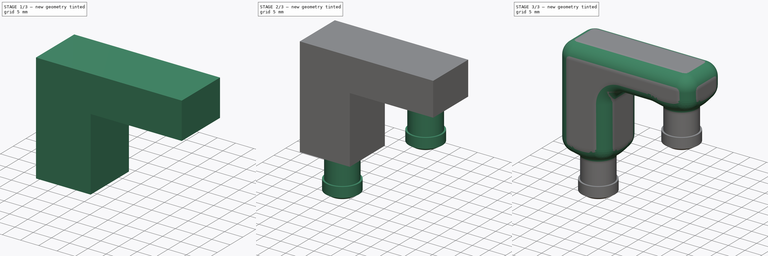
[diagram: build sequence overview — one tinted view per stage of 3, left to right]
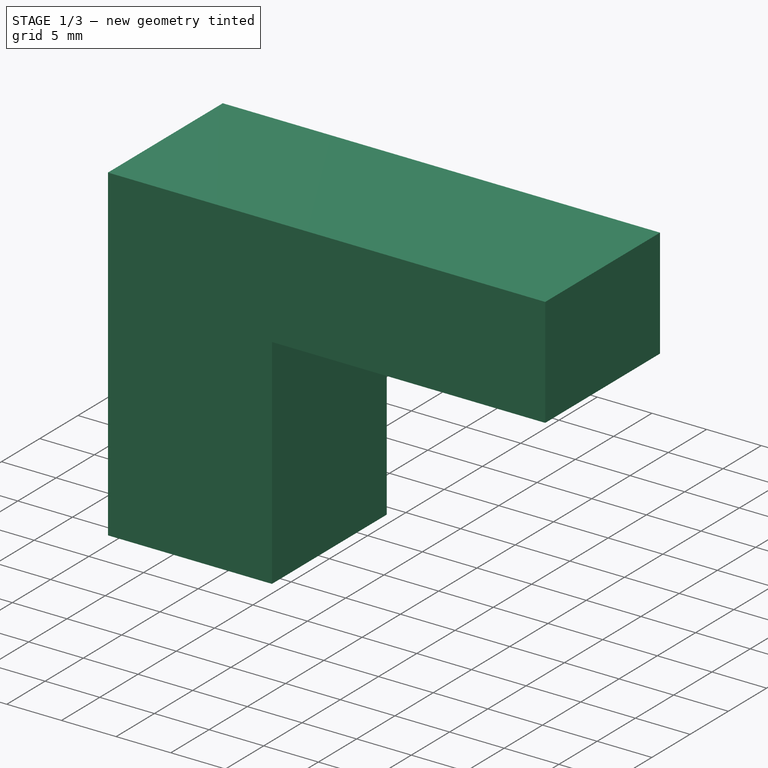
[diagram: stage 1 of 3 — iso view after this stage's code; geometry added in this stage tinted green]
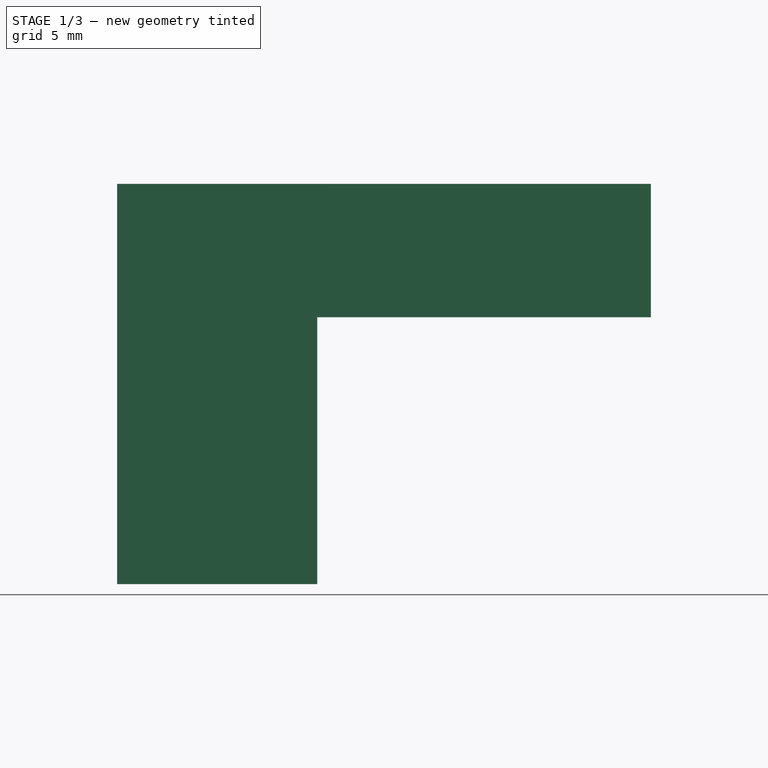
[diagram: stage 1 of 3 — front view after this stage's code; geometry added in this stage tinted green]
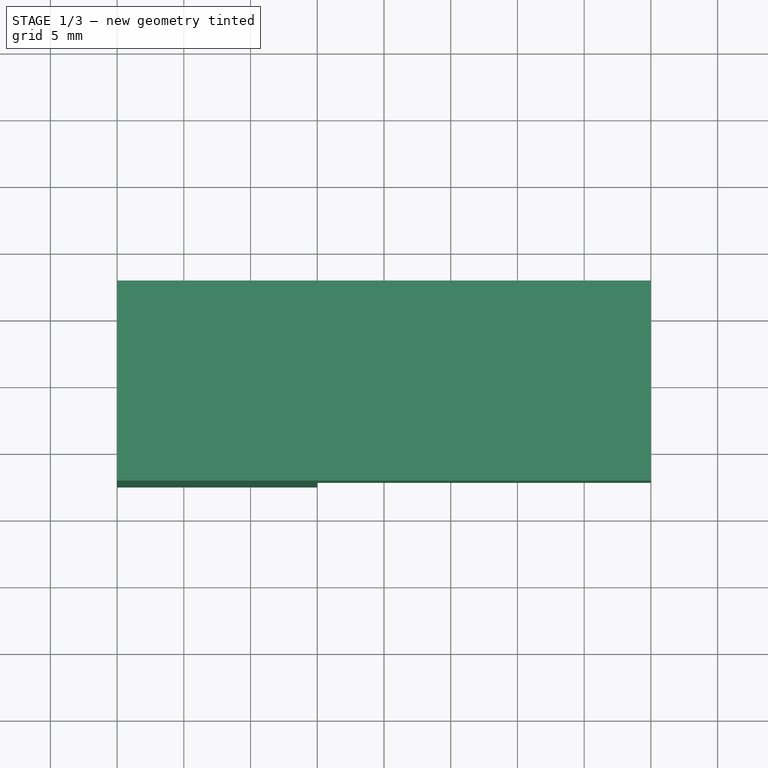
[diagram: stage 1 of 3 — top view after this stage's code; geometry added in this stage tinted green]
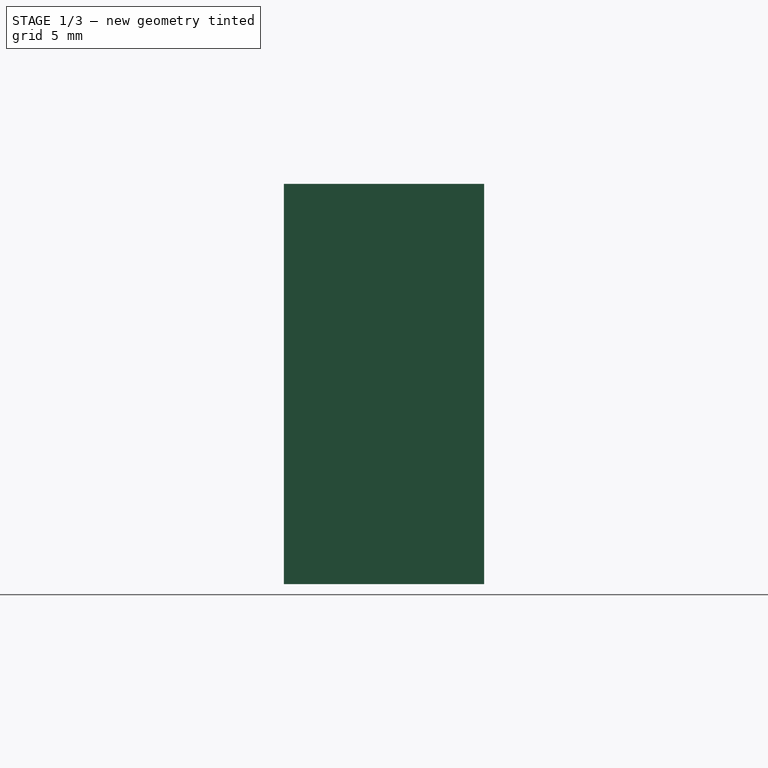
[diagram: stage 1 of 3 — right view after this stage's code; geometry added in this stage tinted green]
FCSTD DOCUMENT  (FreeCAD 2023.521R14555 (Git shallow))
Label: U_bend
License: All rights reserved
LicenseURL: https://en.wikipedia.org/wiki/All_rights_reserved
objects: Sketcher::SketchObject×5, PartDesign::Line×2, PartDesign::Revolution×2, PartDesign::Fillet×2, PartDesign::Pad×1, PartDesign::AdditivePipe×1, PartDesign::Body×1
note: 31 computed .brp shape members not serialized (recipe doc carries the construction recipe); baked Part::Feature solids carry a one-line shape summary decoded from their .brp

FEATURE [Sketcher::SketchObject] Sketch
  ArcFitTolerance = 1e-06
  AttachmentSupport = -> [XZ_Plane]
  ExternalBSplineMaxDegree = 5
  ExternalBSplineTolerance = 0.0001
  FixShape = 1
  FullyConstrained = true
  InternalTolerance = 1e-06
  InvalidShape = false
  MakeInternals = false
  MapMode = 5
  Placement = pos=(0,0,0) rot=(1,0,0;1.5708rad)
  Support = -> [XZ_Plane]
  TreeRank = 11
  ValidateShape = false
  sketch-geometry (6):
    g0: LineSegment StartX=0 StartY=0 StartZ=0 EndX=15 EndY=0 EndZ=0
    g1: LineSegment StartX=15 StartY=0 StartZ=0 EndX=15 EndY=20 EndZ=0
    g2: LineSegment StartX=15 StartY=20 StartZ=0 EndX=40 EndY=20 EndZ=0
    g3: LineSegment StartX=40 StartY=20 StartZ=0 EndX=40 EndY=30 EndZ=0
    g4: LineSegment StartX=40 StartY=30 StartZ=0 EndX=0 EndY=30 EndZ=0
    g5: LineSegment StartX=0 StartY=30 StartZ=0 EndX=0 EndY=0 EndZ=0
  constraints (17):
    c: Coincident(g-1,g0)
    c: Horizontal(g0)
    c: Coincident(g0,g1)
    c: Coincident(g1,g2)
    c: Coincident(g2,g3)
    c: Coincident(g3,g4)
    c: Coincident(g4,g5)
    c: Coincident(g5,g0)
    c: Vertical(g5)
    c: Vertical(g1)
    c: Vertical(g3)
    c: Horizontal(g2)
    c: Horizontal(g4)
    c: DistanceY(g3,g3) = 10
    c: DistanceX(g4,g4) = 40
    c: DistanceY(g1,g1) = 20
    c: DistanceX(g0,g0) = 15
FEATURE [PartDesign::Pad] Pad
  AddSubType = 0
  AlongSketchNormal = false
  AutoTaperInnerAngle = true
  CheckUpToFaceLimits = true
  ClaimChildren = false
  Direction = (0,-1,-2e-16)
  Fit = 0
  FitJoin = 0
  FixShape = 1
  InnerFit = 0
  InnerFitJoin = 0
  InvalidShape = false
  Length = 15
  Length2 = 10
  Linearize = true
  Midplane = true
  NewSolid = false
  Profile = -> Sketch
  ReferenceAxis = -> Sketch [N_Axis]
  Refine = true
  Suppress = false
  TaperInnerAngle = 0
  TaperInnerAngleRev = 0
  TreeRank = 12
  Type = 0
  ValidateShape = true
  _ProfileBasedVersion = 1
FEATURE [Sketcher::SketchObject] Sketch001
  ArcFitTolerance = 1e-06
  AttachmentSupport = -> [XZ_Plane]
  ExternalBSplineMaxDegree = 5
  ExternalBSplineTolerance = 0.0001
  ExternalGeometry = -> [Pad]
  FixShape = 1
  FullyConstrained = true
  InternalTolerance = 1e-06
  InvalidShape = false
  MakeInternals = false
  MapMode = 5
  Placement = pos=(0,0,0) rot=(1,0,0;1.5708rad)
  Support = -> [XZ_Plane]
  TreeRank = 13
  ValidateShape = false
  sketch-geometry (7):
    g0: LineSegment StartX=7.5 StartY=0 StartZ=0 EndX=7.5 EndY=21 EndZ=0
    g1: LineSegment StartX=11.5 StartY=25 StartZ=0 EndX=28.5 EndY=25 EndZ=0
    g2: LineSegment StartX=32.5 StartY=21 StartZ=0 EndX=32.5 EndY=20 EndZ=0
    g3: ArcOfCircle CenterX=11.5 CenterY=21 CenterZ=0 NormalX=0 NormalY=0 NormalZ=1 AngleXU=0 Radius=4 StartAngle=1.5708 EndAngle=3.14159
    g4: ArcOfCircle CenterX=28.5 CenterY=21 CenterZ=0 NormalX=0 NormalY=0 NormalZ=1 AngleXU=0 Radius=4 StartAngle=0 EndAngle=1.5708
    g5: LineSegment [constr] StartX=7.5 StartY=0 StartZ=0 EndX=15 EndY=0 EndZ=0
    g6: LineSegment [constr] StartX=32.5 StartY=20 StartZ=0 EndX=40 EndY=20 EndZ=0
  constraints (17):
    c: Vertical(g0)
    c: Horizontal(g1)
    c: Symmetric(g-4,g-4,g0)
    c: Vertical(g2)
    c: DistanceY(g2,g1) = 5
    c: Equal(g3,g4)
    c: Tangent(g3,g1) = 1.5708
    c: Tangent(g3,g0) = 1.5708
    c: Tangent(g4,g1) = 1.5708
    c: Tangent(g4,g2) = 1.5708
    c: Radius(g4) = 4
    c: Horizontal(g2,g-3)
    c: Coincident(g5,g0)
    c: Coincident(g5,g-4)
    c: Coincident(g6,g2)
    c: Coincident(g6,g-3)
    c: Equal(g6,g5)
FEATURE [Sketcher::SketchObject] Sketch002
  ArcFitTolerance = 1e-06
  AttachmentSupport = -> [Pad]
  ExternalBSplineMaxDegree = 5
  ExternalBSplineTolerance = 0.0001
  ExternalGeometry = -> [Sketch001]
  FixShape = 1
  FullyConstrained = true
  InternalTolerance = 1e-06
  InvalidShape = false
  MakeInternals = false
  MapMode = 5
  Placement = pos=(0,0,0) rot=(1,0,0;3.14159rad)
  Support = -> [Pad]
  TreeRank = 14
  ValidateShape = false
  sketch-geometry (1):
    g0: Circle CenterX=7.5 CenterY=0 CenterZ=0 NormalX=0 NormalY=0 NormalZ=1 AngleXU=0 Radius=3
  constraints (2):
    c: Coincident(g0,g-3)
    c: Diameter(g0) = 6
FEATURE [PartDesign::AdditivePipe] Pipe
  AddSubType = 1
  AuxilleryCurvelinear = true
  AuxillerySpineTangent = false
  BaseFeature = -> Pad
  Binormal = (0,0,0)
  ClaimChildren = false
  Fit = 0
  FitJoin = 0
  FixShape = 1
  InnerFit = 0
  InnerFitJoin = 0
  InvalidShape = false
  Linearize = true
  Mode = 0
  MoveProfile = false
  NewSolid = false
  Profile = -> Sketch002
  Refine = true
  RotateProfile = false
  Spine = -> Sketch001
  SpineTangent = false
  Suppress = false
  Transformation = 0
  Transition = 1
  TreeRank = 15
  ValidateShape = true
  _ProfileBasedVersion = 2
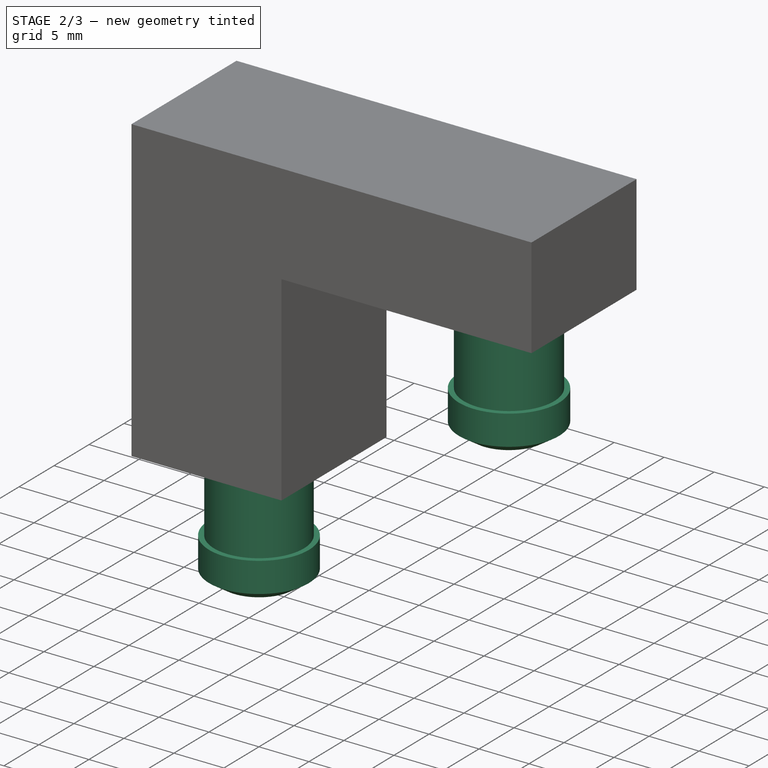
[diagram: stage 2 of 3 — iso view after this stage's code; geometry added in this stage tinted green]
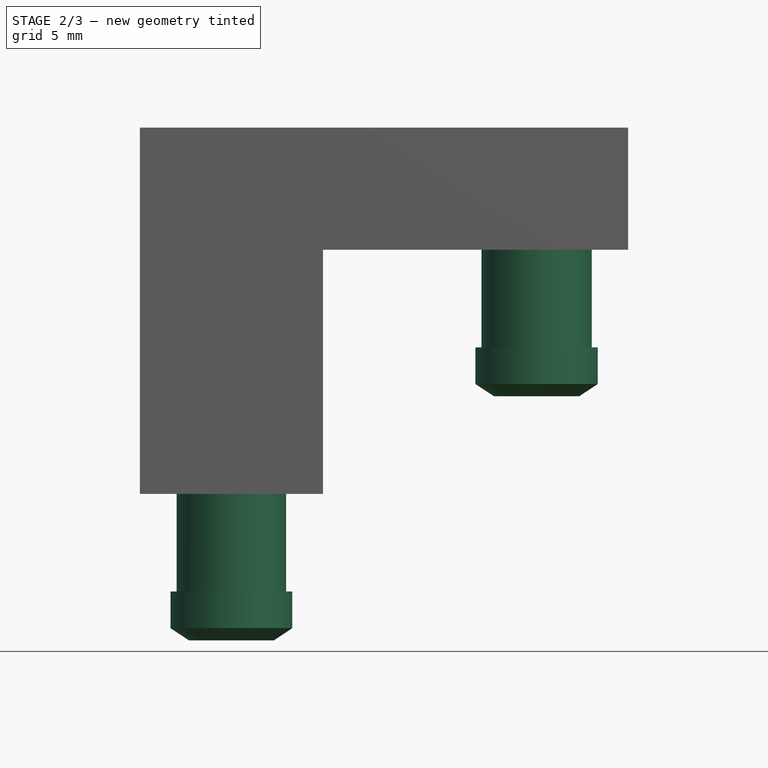
[diagram: stage 2 of 3 — front view after this stage's code; geometry added in this stage tinted green]
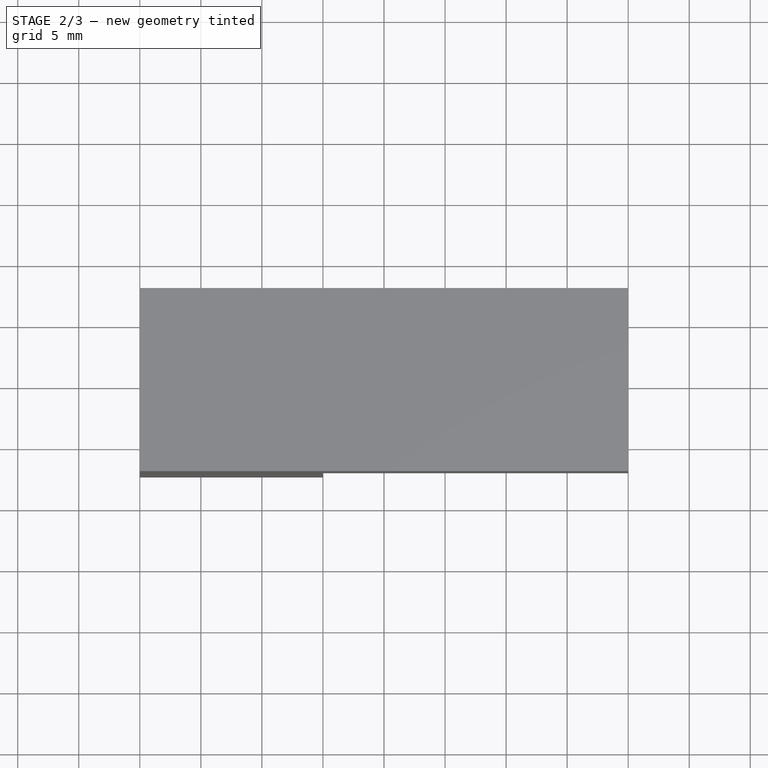
[diagram: stage 2 of 3 — top view after this stage's code; geometry added in this stage tinted green]
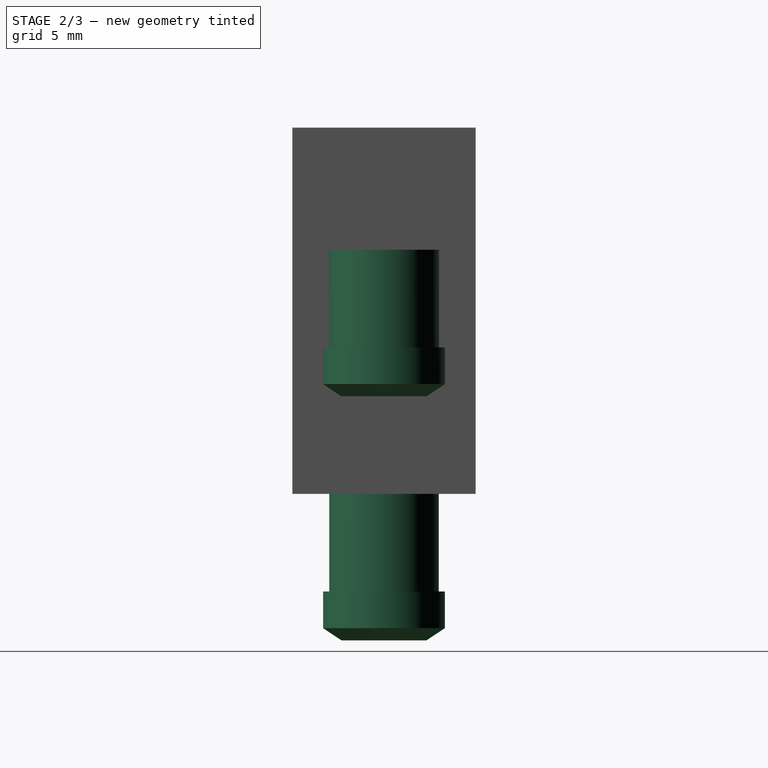
[diagram: stage 2 of 3 — right view after this stage's code; geometry added in this stage tinted green]
FEATURE [Sketcher::SketchObject] Sketch003
  ArcFitTolerance = 1e-06
  AttachmentSupport = -> [XZ_Plane]
  ExternalBSplineMaxDegree = 5
  ExternalBSplineTolerance = 0.0001
  ExternalGeometry = -> [Pipe]
  FixShape = 1
  FullyConstrained = true
  InternalTolerance = 1e-06
  InvalidShape = false
  MakeInternals = false
  MapMode = 5
  Placement = pos=(0,0,0) rot=(1,0,0;1.5708rad)
  Support = -> [XZ_Plane]
  TreeRank = 18
  ValidateShape = false
  sketch-geometry (8):
    g0: LineSegment StartX=4.52366 StartY=-1.3e-15 StartZ=0 EndX=4.52366 EndY=-12 EndZ=0
    g1: LineSegment StartX=4.52366 StartY=-12 StartZ=0 EndX=4.02366 EndY=-12 EndZ=0
    g2: LineSegment StartX=4.02366 StartY=-12 StartZ=0 EndX=2.51183 EndY=-11 EndZ=0
    g3: LineSegment StartX=2.51183 StartY=-11 StartZ=0 EndX=2.51183 EndY=-8 EndZ=0
    g4: LineSegment StartX=2.51183 StartY=-8 StartZ=0 EndX=3.01183 EndY=-8 EndZ=0
    g5: LineSegment StartX=3.01183 StartY=-8 StartZ=0 EndX=3.01183 EndY=0 EndZ=0
    g6: LineSegment StartX=3.01183 StartY=0 StartZ=0 EndX=4.52366 EndY=-1.3e-15 EndZ=0
    g7: GeomPoint [constr] X=7.51183 Y=0 Z=0
  constraints (21):
    c: Coincident(g-3,g0)
    c: Vertical(g0)
    c: Coincident(g0,g1)
    c: Horizontal(g4)
    c: Coincident(g4,g5)
    c: PointOnObject(g5,g-1)
    c: Vertical(g5)
    c: Coincident(g5,g6)
    c: Coincident(g6,g0)
    c: DistanceY(g0,g0) = 12
    c: Horizontal(g1)
    c: DistanceX(g1,g1) = 0.5
    c: Coincident(g2,g3)
    c: Vertical(g3)
    c: Symmetric(g-3,g-3,g7)
    c: DistanceX(g5,g7) = 4.5
    c: DistanceX(g3,g7) = 5
    c: DistanceY(g3,g3) = 3
    c: DistanceY(g1,g3) = 4
    c: Coincident(g3,g4)
    c: Coincident(g2,g1)
FEATURE [PartDesign::Line] DatumLine
  AttacherType = Attacher::AttachEngineLine
  AttachmentSupport = -> [Pipe]
  FixShape = 1
  InvalidShape = false
  Length = 42
  MapMode = 19
  MinimumLength = 10
  Placement = pos=(7.5,0,0) rot=(0,0,1;0rad)
  ResizeMode = 0
  Support = -> [Pipe]
  TreeRank = 17
  ValidateShape = false
FEATURE [PartDesign::Revolution] Revolution
  AddSubType = 0
  Angle = 360
  Axis = (0,-4e-16,1)
  Base = (7.5,0,0)
  BaseFeature = -> Pipe
  ClaimChildren = false
  Fit = 0
  FitJoin = 0
  FixShape = 1
  InnerFit = 0
  InnerFitJoin = 0
  InvalidShape = false
  Linearize = true
  NewSolid = false
  Profile = -> Sketch003
  ReferenceAxis = -> DatumLine
  Refine = true
  Reversed = true
  Suppress = false
  TreeRank = 19
  ValidateShape = true
  _ProfileBasedVersion = 1
FEATURE [Sketcher::SketchObject] Sketch004
  ArcFitTolerance = 1e-06
  AttachmentSupport = -> [XZ_Plane]
  ExternalBSplineMaxDegree = 5
  ExternalBSplineTolerance = 0.0001
  ExternalGeometry = -> [Pipe]
  FixShape = 1
  FullyConstrained = true
  InternalTolerance = 1e-06
  InvalidShape = false
  MakeInternals = false
  MapMode = 5
  Placement = pos=(0,0,0) rot=(1,0,0;1.5708rad)
  Support = -> [XZ_Plane]
  TreeRank = 21
  ValidateShape = false
  sketch-geometry (8):
    g0: LineSegment StartX=29.5 StartY=20 StartZ=0 EndX=29.5 EndY=8 EndZ=0
    g1: LineSegment StartX=29.5 StartY=8 StartZ=0 EndX=29 EndY=8 EndZ=0
    g2: LineSegment StartX=29 StartY=8 StartZ=0 EndX=27.4882 EndY=9 EndZ=0
    g3: LineSegment StartX=27.4882 StartY=9 StartZ=0 EndX=27.4882 EndY=12 EndZ=0
    g4: LineSegment StartX=27.4882 StartY=12 StartZ=0 EndX=27.9882 EndY=12 EndZ=0
    g5: LineSegment StartX=27.9882 StartY=12 StartZ=0 EndX=27.9882 EndY=20 EndZ=0
    g6: LineSegment StartX=27.9882 StartY=20 StartZ=0 EndX=29.5 EndY=20 EndZ=0
    g7: GeomPoint [constr] X=32.4882 Y=20 Z=0
  constraints (21):
    c: Vertical(g0)
    c: Coincident(g0,g1)
    c: Horizontal(g4)
    c: Coincident(g4,g5)
    c: Vertical(g5)
    c: Coincident(g5,g6)
    c: Coincident(g6,g0)
    c: DistanceY(g0,g0) = 12
    c: Horizontal(g1)
    c: DistanceX(g1,g1) = 0.5
    c: Coincident(g2,g3)
    c: Vertical(g3)
    c: DistanceX(g5,g7) = 4.5
    c: DistanceX(g3,g7) = 5
    c: DistanceY(g3,g3) = 3
    c: DistanceY(g1,g3) = 4
    c: Coincident(g3,g4)
    c: Coincident(g2,g1)
    c: Symmetric(g-3,g-3,g7)
    c: Coincident(g0,g-3)
    c: Horizontal(g6)
FEATURE [PartDesign::Line] DatumLine001
  AttacherType = Attacher::AttachEngineLine
  AttachmentSupport = -> [Revolution]
  FixShape = 1
  InvalidShape = false
  Length = 42
  MapMode = 19
  MinimumLength = 10
  Placement = pos=(32.5,-4.4e-15,20) rot=(0,1,0;3.14159rad)
  ResizeMode = 0
  Support = -> [Revolution]
  TreeRank = 22
  ValidateShape = false
FEATURE [PartDesign::Revolution] Revolution001
  AddSubType = 0
  Angle = 360
  Axis = (0,0,-1)
  Base = (32.5,-4.4e-15,20)
  BaseFeature = -> Revolution
  ClaimChildren = false
  Fit = 0
  FitJoin = 0
  FixShape = 1
  InnerFit = 0
  InnerFitJoin = 0
  InvalidShape = false
  Linearize = true
  NewSolid = false
  Profile = -> Sketch004
  ReferenceAxis = -> DatumLine001
  Refine = true
  Reversed = true
  Suppress = false
  TreeRank = 23
  ValidateShape = true
  _ProfileBasedVersion = 1
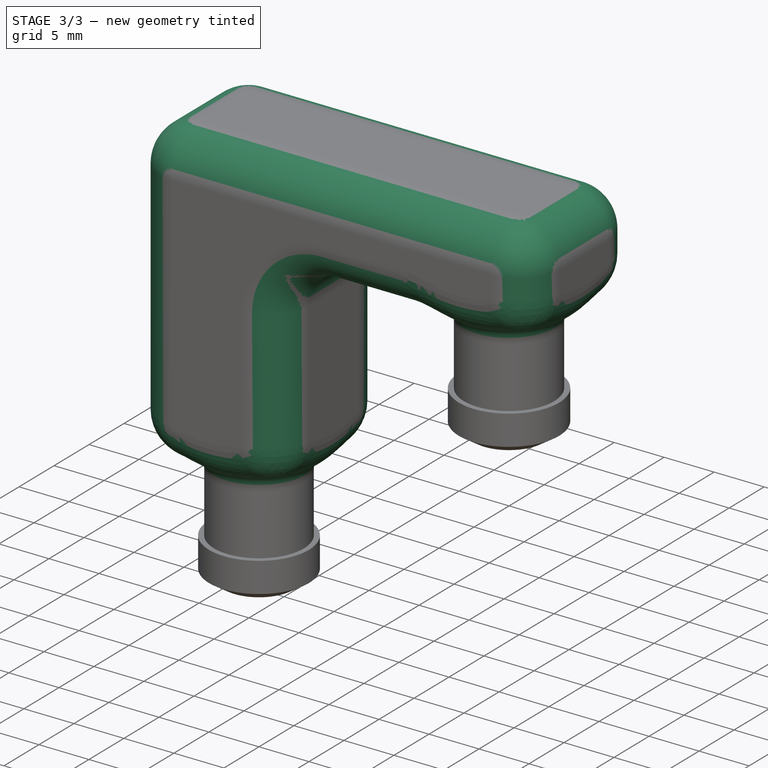
[diagram: stage 3 of 3 — iso view after this stage's code; geometry added in this stage tinted green]
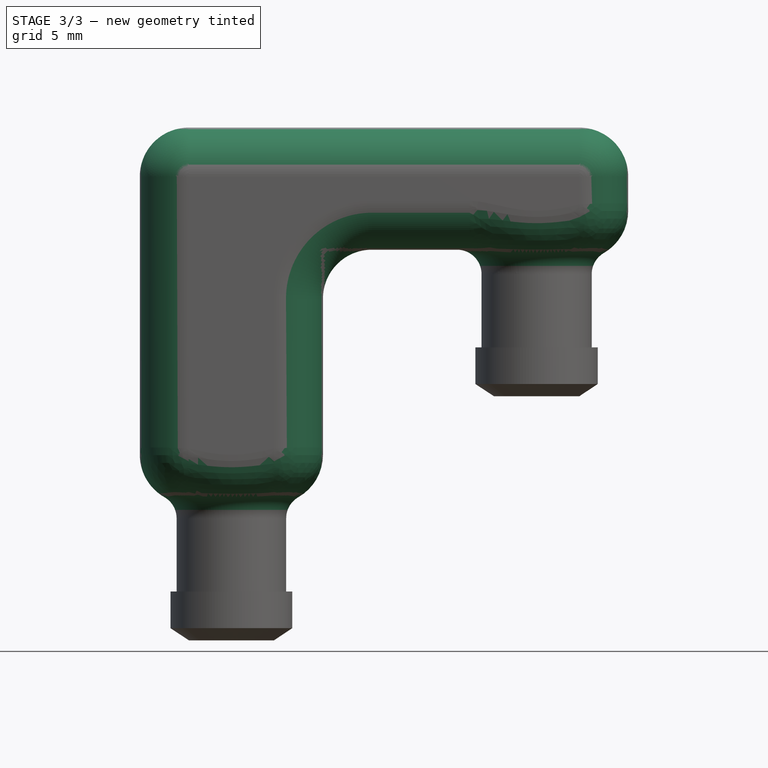
[diagram: stage 3 of 3 — front view after this stage's code; geometry added in this stage tinted green]
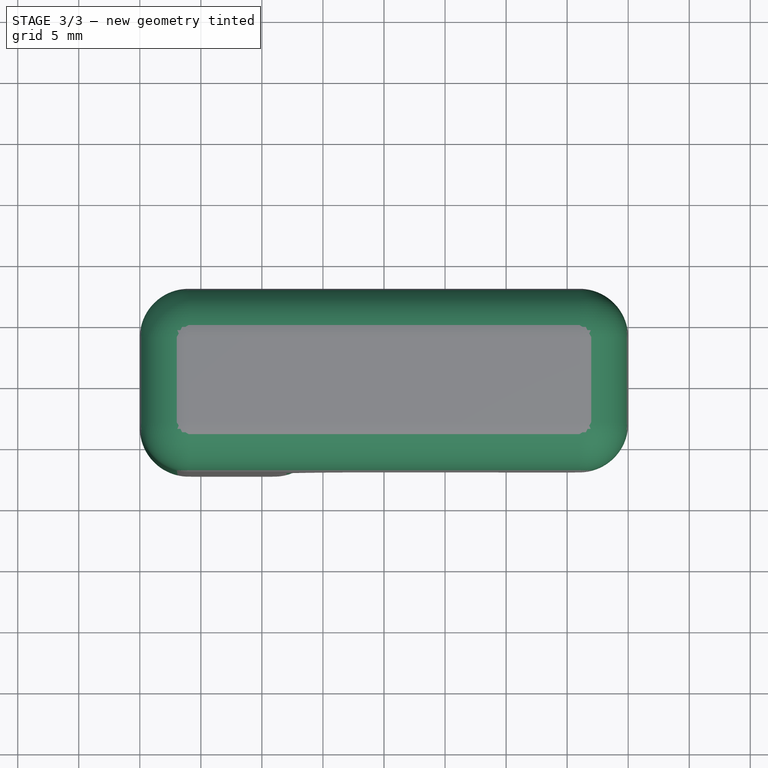
[diagram: stage 3 of 3 — top view after this stage's code; geometry added in this stage tinted green]
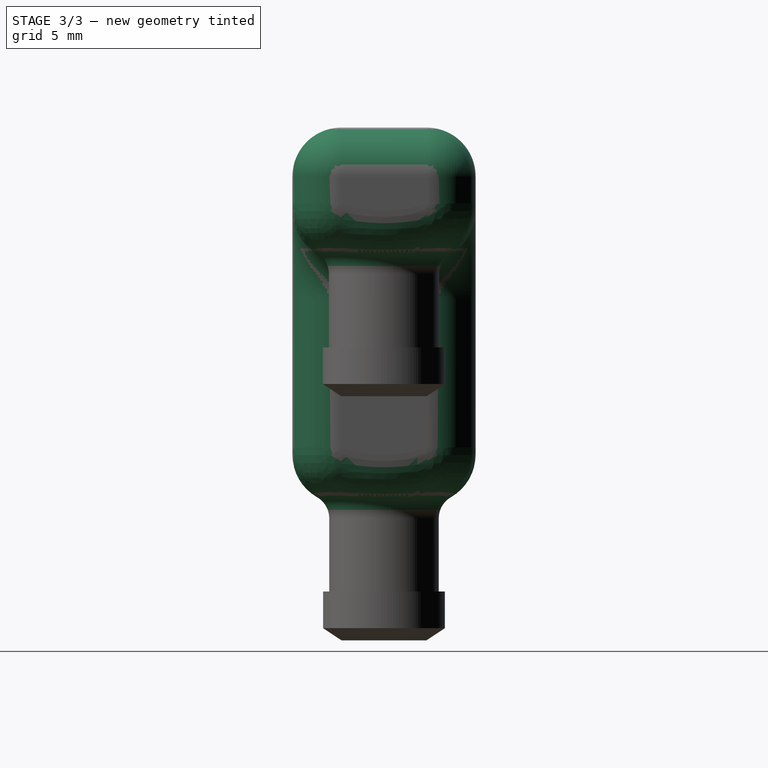
[diagram: stage 3 of 3 — right view after this stage's code; geometry added in this stage tinted green]
FEATURE [PartDesign::Fillet] Fillet
  AddSubType = 0
  Base = -> Revolution001 [Edge5,Edge22]
  BaseFeature = -> Revolution001
  FixShape = 1
  InvalidShape = false
  NewSolid = false
  Radius = 2
  Refine = true
  SupportTransform = false
  Suppress = false
  TreeRank = 24
  UseAllEdges = false
  ValidateShape = true
FEATURE [PartDesign::Fillet] Fillet001
  AddSubType = 0
  Base = -> Fillet [Face8,Face3,Edge14,Face5,Edge52,Face10,Face4,Face1,Edge19]
  BaseFeature = -> Fillet
  FixShape = 1
  InvalidShape = false
  NewSolid = false
  Radius = 4
  Refine = true
  SupportTransform = false
  Suppress = false
  TreeRank = 25
  UseAllEdges = false
  ValidateShape = true
FEATURE [PartDesign::Body] Body
  AutoGroupSolids = false
  ClaimAllChildren = false
  ExportMode = 0
  FixShape = 1
  Group = -> [Sketch,Pad,Sketch001,Sketch002,Pipe,Sketch003,DatumLine,Revolution,DatumLine001,Sketch004,Revolution001,Fillet,Fillet001]
  InvalidShape = false
  Origin = -> Origin
  Tip = -> Fillet001
  TreeRank = 10
  ValidateShape = false
  _ExportChildren = -> [Pad,Pipe,DatumLine,Revolution,DatumLine001,Revolution001,Fillet,Fillet001]
  _GroupVersion = 1
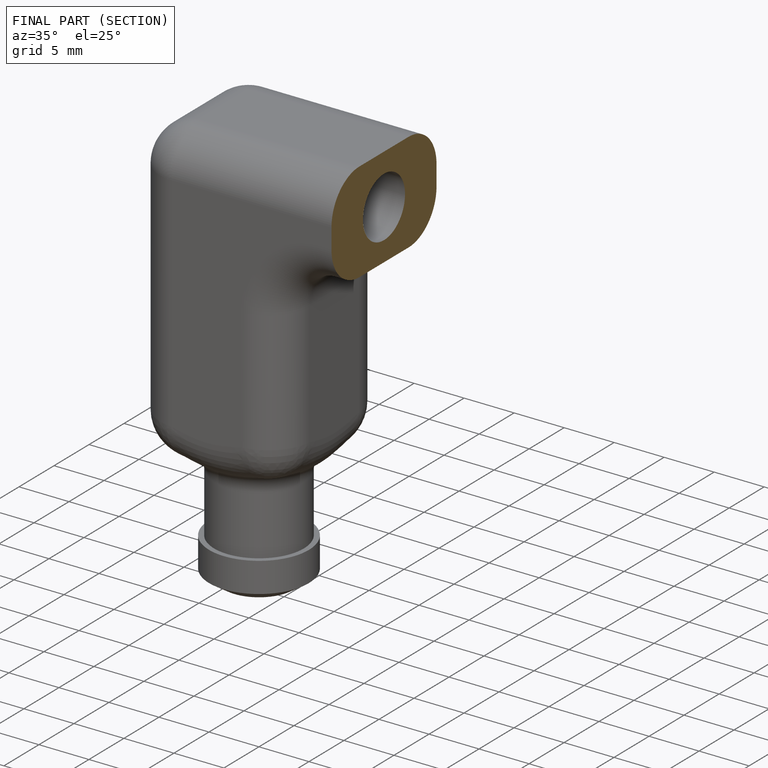
[diagram: finished part — half-section view (interior)]
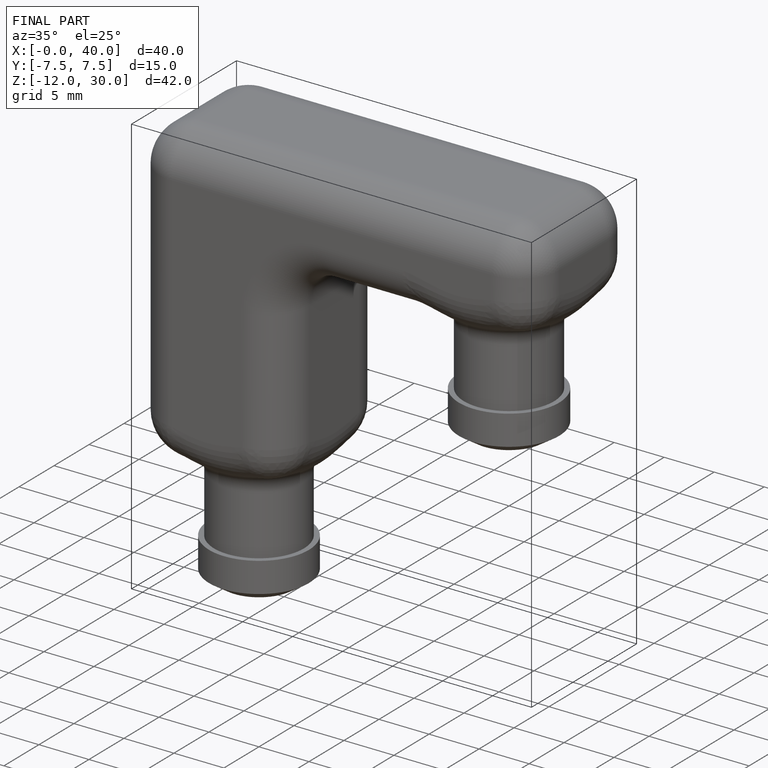
[diagram: finished part — iso view with bounding-box wireframe]
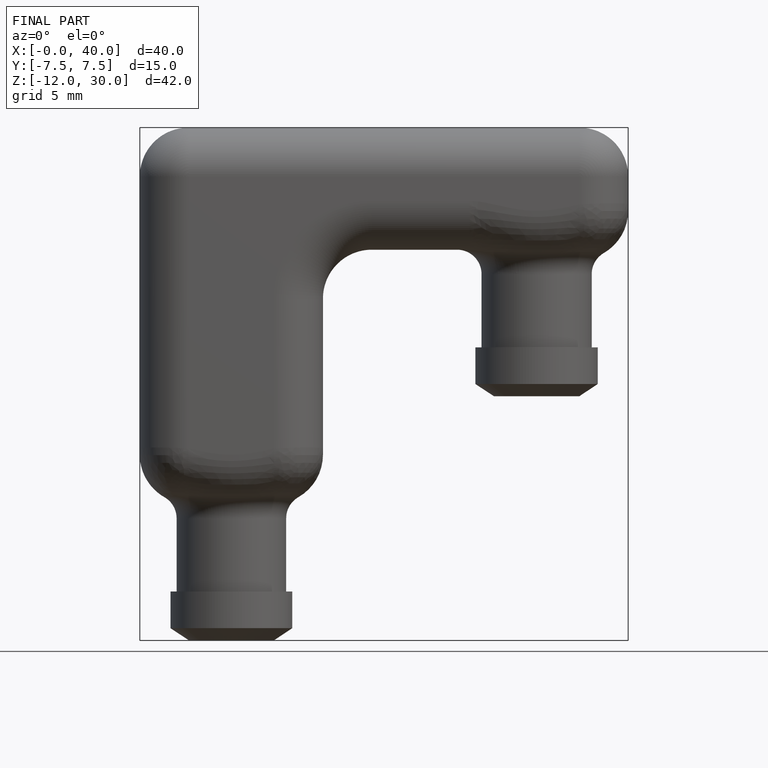
[diagram: finished part — front view with bounding-box wireframe]
